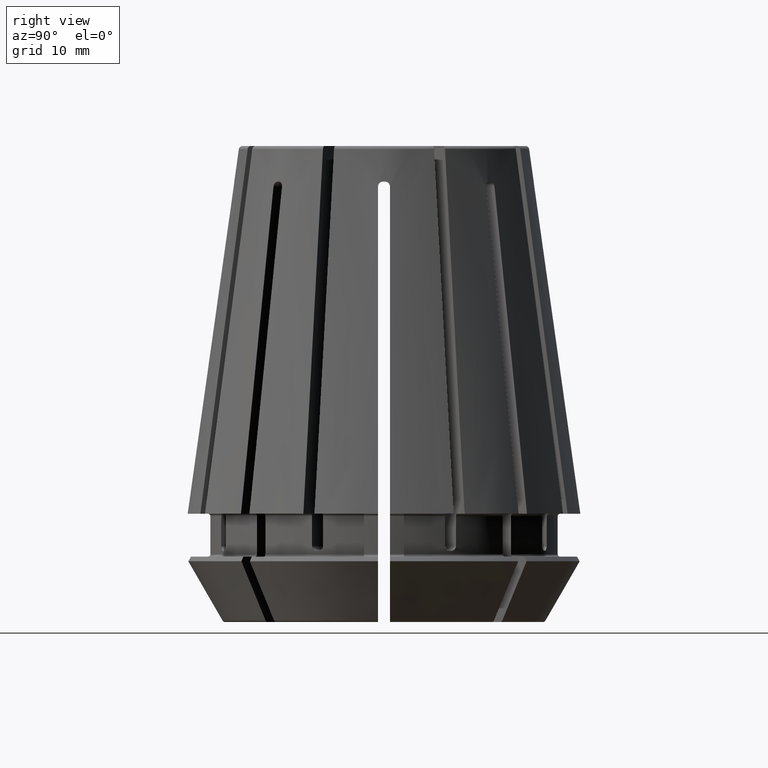
[diagram: clean part render]
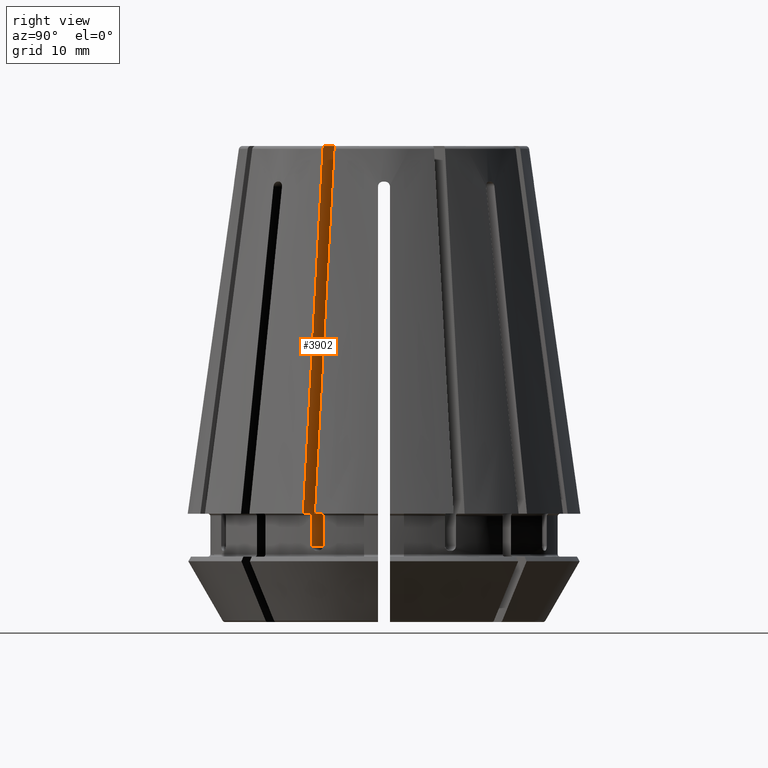
[diagram: same view with one face highlighted and labeled with its STEP entity id]
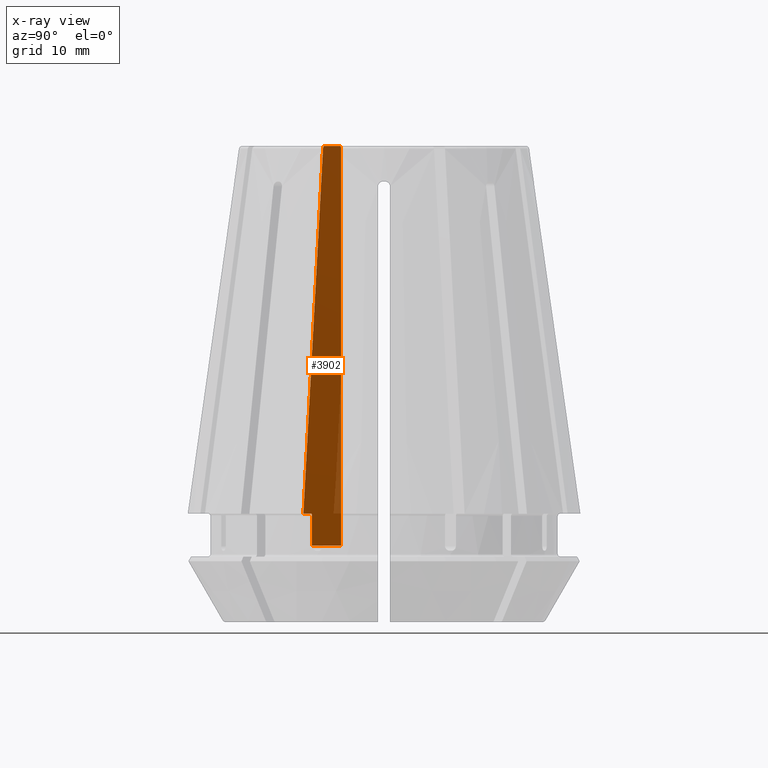
[diagram: x-ray of the same camera — body ghosted, the highlighted face saturated]
A machine part, right view. The second image highlights one B-rep face of the part: STEP entity #3902.
The next image is the same camera in x-ray: the body ghosted, the highlighted face saturated — about 4% of this face is hidden behind the body in this view.
In plain terms, the highlighted planar face has unit normal (0.3827, 0.9239, 0).
Its self-contained STEP definition (entity closure, byte-faithful):
#99=LINE('',#5681,#323);
#144=LINE('',#6118,#368);
#246=LINE('',#6790,#470);
#247=LINE('',#6792,#471);
#248=LINE('',#6793,#472);
#323=VECTOR('',#4524,1000.);
#368=VECTOR('',#4773,1000.);
#470=VECTOR('',#5147,1000.);
#471=VECTOR('',#5148,1000.);
#472=VECTOR('',#5149,1000.);
#587=PLANE('',#4294);
#1417=ORIENTED_EDGE('',*,*,#2284,.F.);
#1418=ORIENTED_EDGE('',*,*,#2517,.T.);
#1419=ORIENTED_EDGE('',*,*,#2518,.T.);
#1420=ORIENTED_EDGE('',*,*,#2128,.F.);
#1421=ORIENTED_EDGE('',*,*,#2519,.T.);
#1422=ORIENTED_EDGE('',*,*,#2125,.T.);
#1423=ORIENTED_EDGE('',*,*,#2122,.T.);
#1424=ORIENTED_EDGE('',*,*,#2134,.T.);
#1425=ORIENTED_EDGE('',*,*,#2130,.T.);
#2122=EDGE_CURVE('',#2728,#2736,#3122,.T.);
#2125=EDGE_CURVE('',#2738,#2728,#3124,.T.);
#2128=EDGE_CURVE('',#2741,#2742,#3126,.T.);
#2130=EDGE_CURVE('',#2743,#2744,#3127,.T.);
#2134=EDGE_CURVE('',#2736,#2743,#99,.T.);
#2284=EDGE_CURVE('',#2868,#2744,#144,.T.);
#2517=EDGE_CURVE('',#2868,#3044,#246,.T.);
#2518=EDGE_CURVE('',#3044,#2742,#247,.T.);
#2519=EDGE_CURVE('',#2741,#2738,#248,.T.);
#2728=VERTEX_POINT('',#5596);
#2736=VERTEX_POINT('',#5630);
#2738=VERTEX_POINT('',#5641);
#2741=VERTEX_POINT('',#5658);
#2742=VERTEX_POINT('',#5663);
#2743=VERTEX_POINT('',#5670);
#2744=VERTEX_POINT('',#5671);
#2868=VERTEX_POINT('',#6117);
#3044=VERTEX_POINT('',#6791);
#3122=B_SPLINE_CURVE_WITH_KNOTS('',3,(#5631,#5632,#5633,#5634,#5635,#5636,
#5637),.UNSPECIFIED.,.F.,.F.,(4,3,4),(2.01968808754364E-7,0.0214077289776241,
0.0309434607732391),.UNSPECIFIED.);
#3124=B_SPLINE_CURVE_WITH_KNOTS('',3,(#5646,#5647,#5648,#5649),
 .UNSPECIFIED.,.F.,.F.,(4,4),(3.87895961444886E-18,0.000427305252883045),
 .UNSPECIFIED.);
#3126=B_SPLINE_CURVE_WITH_KNOTS('',3,(#5659,#5660,#5661,#5662),
 .UNSPECIFIED.,.F.,.F.,(4,4),(1.13711256170834E-16,0.000312711929800147),
 .UNSPECIFIED.);
#3127=B_SPLINE_CURVE_WITH_KNOTS('',3,(#5666,#5667,#5668,#5669),
 .UNSPECIFIED.,.F.,.F.,(4,4),(1.93947980722443E-18,0.000312522186479818),
 .UNSPECIFIED.);
#3426=EDGE_LOOP('',(#1417,#1418,#1419,#1420,#1421,#1422,#1423,#1424,#1425));
#3636=FACE_BOUND('',#3426,.T.);
#3902=ADVANCED_FACE('',(#3636),#587,.T.);
#4294=AXIS2_PLACEMENT_3D('',#6789,#5145,#5146);
#4524=DIRECTION('',(-0.923879532511287,0.38268343236509,-2.08277863858284E-18));
#4773=DIRECTION('',(-2.25438335333768E-18,0.,1.));
#5145=DIRECTION('',(0.38268343236509,0.923879532511287,0.));
#5146=DIRECTION('',(0.923879532511287,-0.38268343236509,0.));
#5147=DIRECTION('',(-0.923879532511287,0.38268343236509,0.));
#5148=DIRECTION('',(0.,0.,1.));
#5149=DIRECTION('',(0.923879532511287,-0.38268343236509,0.));
#5596=CARTESIAN_POINT('',(11.0645847371673,-5.12429716030738,39.941751930288));
#5630=CARTESIAN_POINT('',(15.0456698753787,-6.77331661751635,9.3));
#5631=CARTESIAN_POINT('',(11.0645847371674,-5.12429716030726,39.941751930288));
#5632=CARTESIAN_POINT('',(11.9828628563069,-5.50466041128533,32.8754703804668));
#5633=CARTESIAN_POINT('',(12.9009628596432,-5.88494988428199,25.8091617123351));
#5634=CARTESIAN_POINT('',(13.8189725361736,-6.26520194269062,18.7428392986605));
#5635=CARTESIAN_POINT('',(14.2278891783845,-6.43458076177442,15.5952288670361));
#5636=CARTESIAN_POINT('',(14.6367868802605,-6.60395173551468,12.4476155525968));
#5637=CARTESIAN_POINT('',(15.0456698753787,-6.77331661751635,9.3));
#5641=CARTESIAN_POINT('',(10.7898814012386,-5.01051131293644,40.2));
#5646=CARTESIAN_POINT('',(10.7898814012386,-5.01051131293644,40.2));
#5647=CARTESIAN_POINT('',(10.9233681867104,-5.06580334987643,40.2));
#5648=CARTESIAN_POINT('',(11.0459911833332,-5.11659545813643,40.0848319881333));
#5649=CARTESIAN_POINT('',(11.0645847371674,-5.12429716030728,39.941751930288));
#5658=CARTESIAN_POINT('',(7.60176149269299,-3.68994880834518,40.2));
#5659=CARTESIAN_POINT('',(7.60176149269289,-3.68994880834514,40.2));
#5660=CARTESIAN_POINT('',(7.50407312873614,-3.64948496310821,40.1999999999999));
#5661=CARTESIAN_POINT('',(7.41665337448331,-3.61327451527736,40.1057424448114));
#5662=CARTESIAN_POINT('',(7.41665337448321,-3.61327451527733,40.0000000000002));
#5663=CARTESIAN_POINT('',(7.41665337448362,-3.61327451527749,40.0000000000001));
#5666=CARTESIAN_POINT('',(13.4742701006335,-6.12242151890688,9.3));
#5667=CARTESIAN_POINT('',(13.3766404103433,-6.08198197709839,9.3));
#5668=CARTESIAN_POINT('',(13.2893872103701,-6.04584051830905,9.20567533261277));
#5669=CARTESIAN_POINT('',(13.28938721037,-6.04584051830901,9.10000000000021));
#5670=CARTESIAN_POINT('',(13.4742701006335,-6.12242151890688,9.3));
#5671=CARTESIAN_POINT('',(13.2893872103705,-6.04584051830919,9.1000000000001));
#5681=CARTESIAN_POINT('',(12.4412484645979,-5.69452994703609,9.3));
#6117=CARTESIAN_POINT('',(13.2893872103709,-6.04584051830936,6.6));
#6118=CARTESIAN_POINT('',(13.2893872103709,-6.04584051830936,34.));
#6789=CARTESIAN_POINT('',(-0.191341716182539,-0.461939766255645,79.765209168465));
#6790=CARTESIAN_POINT('',(7.41665337448402,-3.61327451527765,6.6));
#6791=CARTESIAN_POINT('',(7.41665337448402,-3.61327451527765,6.6));
#6792=CARTESIAN_POINT('',(7.41665337448402,-3.61327451527765,-57.));
#6793=CARTESIAN_POINT('',(-4.3973904003673,1.28026264273519,40.2));